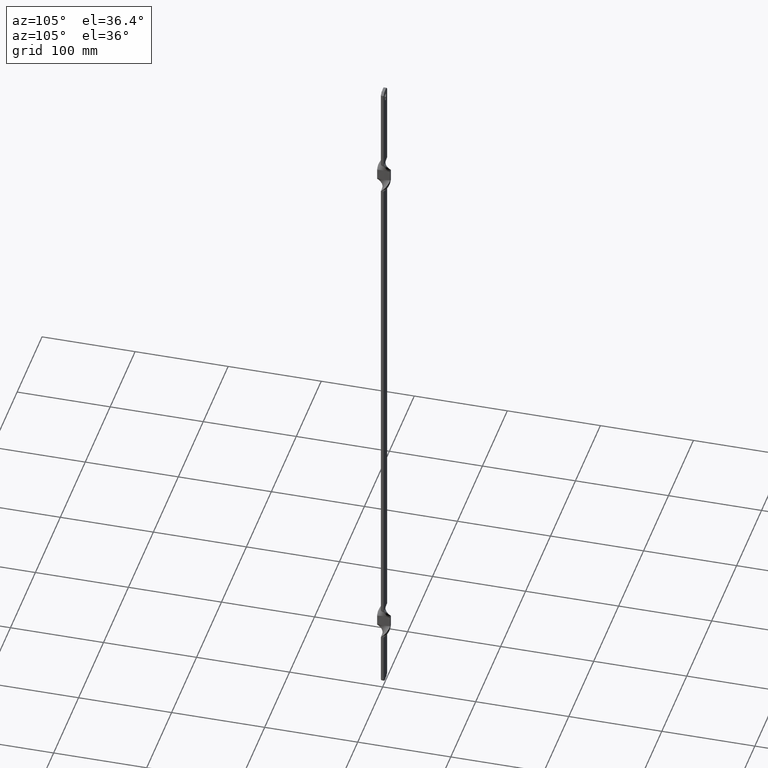
[diagram: clean part render]
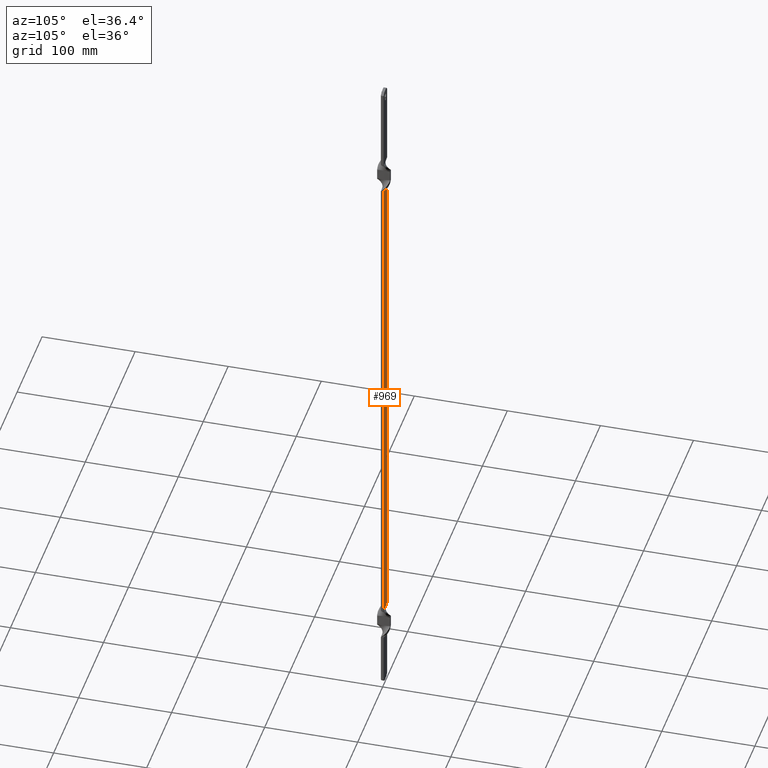
[diagram: same view with one face highlighted and labeled with its STEP entity id]
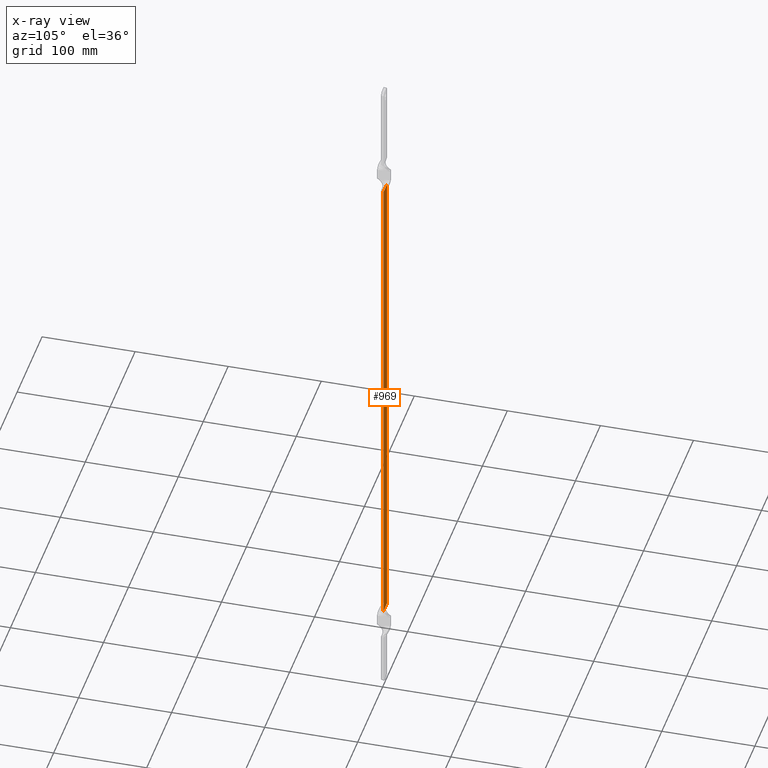
[diagram: x-ray of the same camera — body ghosted, the highlighted face saturated]
A machine part, auxiliary view. The second image highlights one B-rep face of the part: STEP entity #969.
The next image is the same camera in x-ray: the body ghosted, the highlighted face saturated — about 0% of this face is hidden behind the body in this view.
In plain terms, the highlighted face is a freeform B-spline surface patch.
Its self-contained STEP definition (entity closure, byte-faithful):
#573=CARTESIAN_POINT('',(-7.000000000000110,3.000000142492295,632.500000000000000));
#574=VERTEX_POINT('',#573);
#667=CARTESIAN_POINT('',(6.999999999999890,3.000000142492410,632.500000000000000));
#668=VERTEX_POINT('',#667);
#669=CARTESIAN_POINT('',(-7.000000000000110,3.000000142492295,632.500000000000000));
#670=CARTESIAN_POINT('',(6.999999999999890,3.000000142492410,632.500000000000000));
#671=QUASI_UNIFORM_CURVE('',1,(#669,#670),.UNSPECIFIED.,.F.,.U.);
#672=EDGE_CURVE('',#574,#668,#671,.T.);
#931=CARTESIAN_POINT('',(6.999999999999890,3.000000142492410,92.500000000001094));
#932=VERTEX_POINT('',#931);
#938=CARTESIAN_POINT('',(6.999999999999890,3.000000142492410,632.500000000000000));
#939=CARTESIAN_POINT('',(6.999999999999890,3.000000142492410,92.500000000001094));
#940=QUASI_UNIFORM_CURVE('',1,(#938,#939),.UNSPECIFIED.,.F.,.U.);
#941=EDGE_CURVE('',#668,#932,#940,.T.);
#948=CARTESIAN_POINT('',(7.699299972865173,3.000000142492295,65.527001046625969));
#949=CARTESIAN_POINT('',(-7.699300348374655,3.000000142492295,65.527001046625969));
#950=CARTESIAN_POINT('',(7.699299972865173,3.000000142492295,659.473013437303730));
#951=CARTESIAN_POINT('',(-7.699300348374655,3.000000142492295,659.473013437303730));
#952=B_SPLINE_SURFACE_WITH_KNOTS('',1,1,((#948,#950),(#949,#951)),.UNSPECIFIED.,.F.,.F.,.U.,(2,2),(2,2),(0.0,15.398600321239829),(0.0,593.946012390677770),.UNSPECIFIED.);
#953=CARTESIAN_POINT('',(-7.000000000000110,3.000000142492295,92.500000000001094));
#954=VERTEX_POINT('',#953);
#955=CARTESIAN_POINT('',(6.999999999999890,3.000000142492410,92.500000000001094));
#956=CARTESIAN_POINT('',(-7.000000000000110,3.000000142492295,92.500000000001094));
#957=QUASI_UNIFORM_CURVE('',1,(#955,#956),.UNSPECIFIED.,.F.,.U.);
#958=EDGE_CURVE('',#932,#954,#957,.T.);
#959=ORIENTED_EDGE('',*,*,#958,.T.);
#960=CARTESIAN_POINT('',(-7.000000000000110,3.000000142492295,632.500000000000000));
#961=CARTESIAN_POINT('',(-7.000000000000110,3.000000142492295,92.500000000001094));
#962=QUASI_UNIFORM_CURVE('',1,(#960,#961),.UNSPECIFIED.,.F.,.U.);
#963=EDGE_CURVE('',#574,#954,#962,.T.);
#964=ORIENTED_EDGE('',*,*,#963,.F.);
#965=ORIENTED_EDGE('',*,*,#672,.T.);
#966=ORIENTED_EDGE('',*,*,#941,.T.);
#967=EDGE_LOOP('',(#959,#964,#965,#966));
#968=FACE_OUTER_BOUND('',#967,.T.);
#969=ADVANCED_FACE('',(#968),#952,.T.);